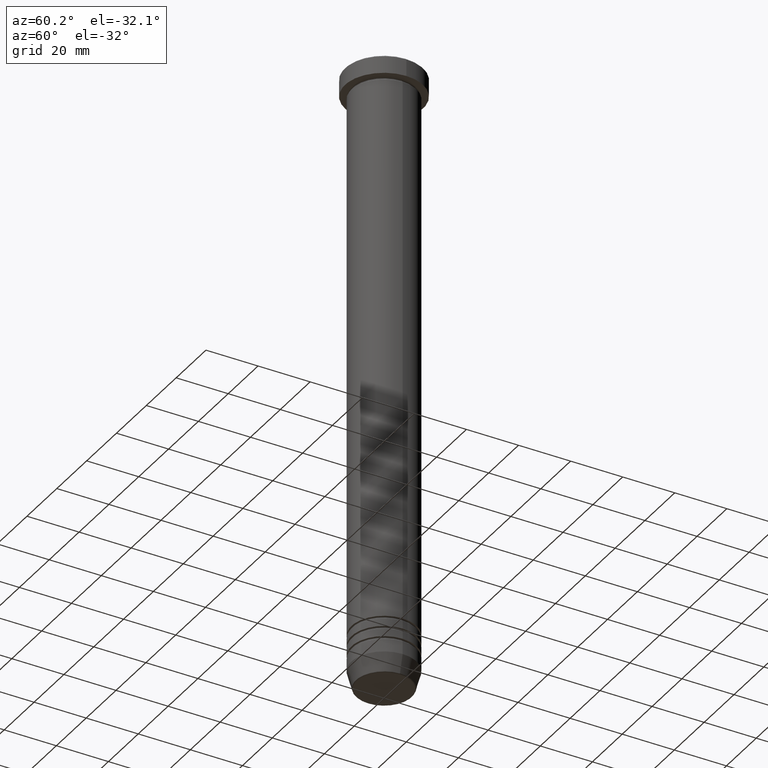
[diagram: clean part render]
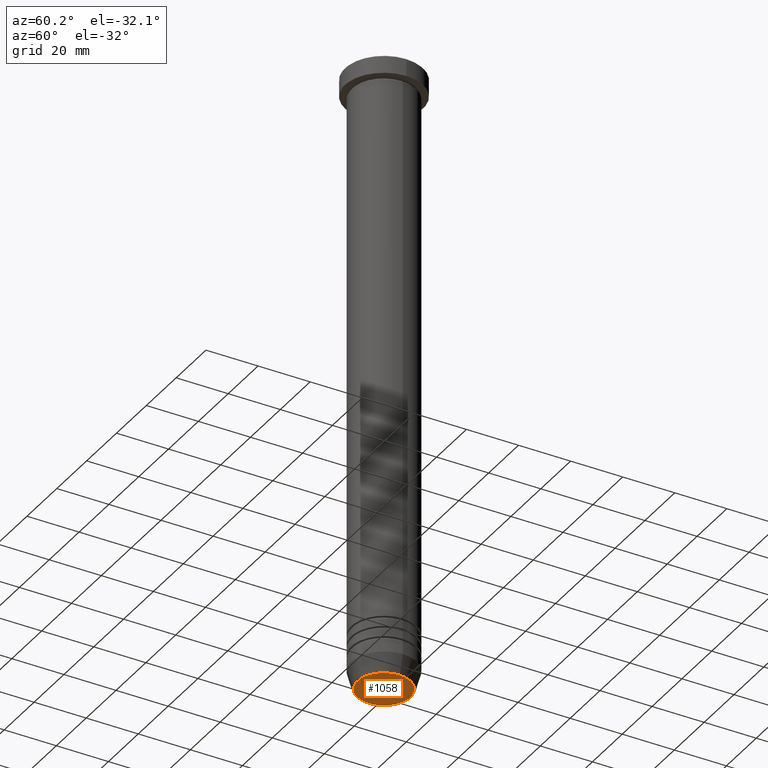
[diagram: same view with one face highlighted and labeled with its STEP entity id]
A machine part, auxiliary view. The second image highlights one B-rep face of the part: STEP entity #1058.
In plain terms, the highlighted planar face has unit normal (0, -0, 1).
Its self-contained STEP definition (entity closure, byte-faithful):
#4 = CARTESIAN_POINT ( 'NONE',  ( -10.24069215899264584, 1.283696036640840601E-15, -240.0000000000000568 ) ) ;
#23 = DIRECTION ( 'NONE',  ( 1.000000000000000000, 0.000000000000000000, 0.000000000000000000 ) ) ;
#60 = VERTEX_POINT ( 'NONE', #824 ) ;
#84 = EDGE_CURVE ( 'NONE', #60, #777, #703, .T. ) ;
#133 = CIRCLE ( 'NONE', #793, 10.24069215899264584 ) ;
#152 = PLANE ( 'NONE',  #409 ) ;
#228 = DIRECTION ( 'NONE',  ( 1.000000000000000000, 0.000000000000000000, 0.000000000000000000 ) ) ;
#313 = ORIENTED_EDGE ( 'NONE', *, *, #365, .T. ) ;
#365 = EDGE_CURVE ( 'NONE', #777, #60, #133, .T. ) ;
#397 = FACE_OUTER_BOUND ( 'NONE', #990, .T. ) ;
#409 = AXIS2_PLACEMENT_3D ( 'NONE', #957, #1057, #228 ) ;
#423 = DIRECTION ( 'NONE',  ( 0.000000000000000000, 0.000000000000000000, -1.000000000000000000 ) ) ;
#529 = CARTESIAN_POINT ( 'NONE',  ( 0.000000000000000000, 0.000000000000000000, -240.0000000000000568 ) ) ;
#560 = DIRECTION ( 'NONE',  ( 1.000000000000000000, 0.000000000000000000, 0.000000000000000000 ) ) ;
#561 = ORIENTED_EDGE ( 'NONE', *, *, #84, .T. ) ;
#566 = CARTESIAN_POINT ( 'NONE',  ( 0.000000000000000000, 0.000000000000000000, -240.0000000000000568 ) ) ;
#703 = CIRCLE ( 'NONE', #800, 10.24069215899264584 ) ;
#777 = VERTEX_POINT ( 'NONE', #4 ) ;
#793 = AXIS2_PLACEMENT_3D ( 'NONE', #566, #423, #23 ) ;
#800 = AXIS2_PLACEMENT_3D ( 'NONE', #529, #922, #560 ) ;
#824 = CARTESIAN_POINT ( 'NONE',  ( 10.24069215899264584, 0.000000000000000000, -240.0000000000000568 ) ) ;
#922 = DIRECTION ( 'NONE',  ( 0.000000000000000000, 0.000000000000000000, -1.000000000000000000 ) ) ;
#957 = CARTESIAN_POINT ( 'NONE',  ( 0.000000000000000000, 2.326828918379971601E-14, -240.0000000000000568 ) ) ;
#990 = EDGE_LOOP ( 'NONE', ( #561, #313 ) ) ;
#1057 = DIRECTION ( 'NONE',  ( 0.000000000000000000, -0.000000000000000000, 1.000000000000000000 ) ) ;
#1058 = ADVANCED_FACE ( 'NONE', ( #397 ), #152, .F. ) ;